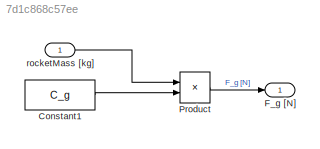
MODEL slx_7d1c868c57ee
KIND model
CONFIG AbsTol = auto
CONFIG EnableMultiTasking = off
CONFIG FixedStep = auto
CONFIG MaxStep = auto
CONFIG MinStep = auto
CONFIG RelTol = 1e-3
CONFIG SampleTimeConstraint = Unconstrained
CONFIG SolverName = FixedStepAuto
CONFIG StartTime = 0.0
CONFIG StopTime = 10.0
BLOCK [Constant] Constant1
  Value = C_g
BLOCK [Outport] F_g [N]
BLOCK [Product] Product
  Ports = [2, 1]
BLOCK [Inport] rocketMass [kg]
LINE Constant1:1 -> Product:2
LINE Product:1 -> F_g [N]:1
LINE rocketMass [kg]:1 -> Product:1
